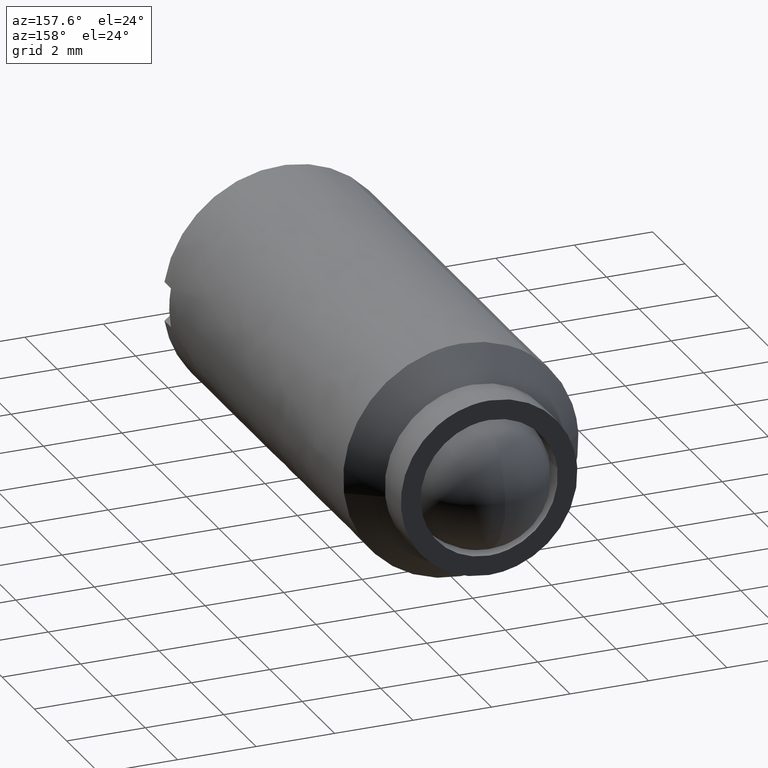
[diagram: clean part render]
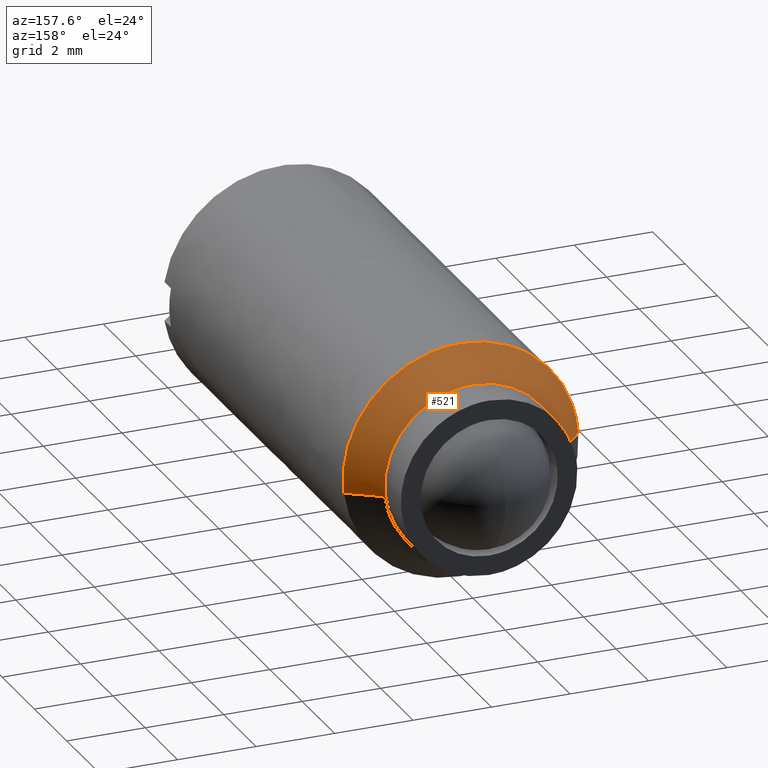
[diagram: same view with one face highlighted and labeled with its STEP entity id]
A machine part, auxiliary view. The second image highlights one B-rep face of the part: STEP entity #521.
In plain terms, the highlighted face is a freeform B-spline surface patch.
Its self-contained STEP definition (entity closure, byte-faithful):
#252=CARTESIAN_POINT('',(0.791140442382787,-2.0,2.106323052246821));
#253=VERTEX_POINT('',#252);
#254=CARTESIAN_POINT('',(0.0,-2.0,2.249999999999999));
#255=VERTEX_POINT('',#254);
#256=CARTESIAN_POINT('',(0.791140442382787,-2.000000000000000,2.106323052246821));
#257=CARTESIAN_POINT('',(0.408616618652142,-2.000000000000000,2.249999999999999));
#258=CARTESIAN_POINT('',(0.0,-2.0,2.249999999999999));
#266=(BOUNDED_CURVE()B_SPLINE_CURVE(2,(#256,#257,#258),.UNSPECIFIED.,.F.,.U.)B_SPLINE_CURVE_WITH_KNOTS((3,3),(0.440284170898647,0.500000000000000),.UNSPECIFIED.)CURVE()GEOMETRIC_REPRESENTATION_ITEM()RATIONAL_B_SPLINE_CURVE((0.893499554635445,0.930038554401563,1.0))REPRESENTATION_ITEM(''));
#267=EDGE_CURVE('',#253,#255,#266,.T.);
#306=CARTESIAN_POINT('',(-2.245803296450222,-2.000000000004009,0.137359213967844));
#307=VERTEX_POINT('',#306);
#313=CARTESIAN_POINT('',(0.0,-2.0,2.249999999999999));
#314=CARTESIAN_POINT('',(-2.116588650483795,-2.000000000000000,2.250000000000000));
#315=CARTESIAN_POINT('',(-2.245803296450223,-2.000000000004009,0.137359213967844));
#323=(BOUNDED_CURVE()B_SPLINE_CURVE(2,(#313,#314,#315),.UNSPECIFIED.,.F.,.U.)B_SPLINE_CURVE_WITH_KNOTS((3,3),(0.500000000000000,0.739332962237573),.UNSPECIFIED.)CURVE()GEOMETRIC_REPRESENTATION_ITEM()RATIONAL_B_SPLINE_CURVE((1.0,0.719603993288315,0.976072041663781))REPRESENTATION_ITEM(''));
#324=EDGE_CURVE('',#255,#307,#323,.T.);
#351=CARTESIAN_POINT('',(2.234271434318409,-2.000000000002305,-0.265577027995891));
#352=VERTEX_POINT('',#351);
#353=CARTESIAN_POINT('',(2.234271434318409,-2.000000000002306,-0.265577027995891));
#354=CARTESIAN_POINT('',(2.250000000000000,-2.000000000000000,-0.133254269234900));
#355=CARTESIAN_POINT('',(2.250000000000000,-2.0,-9.796851E-016));
#356=CARTESIAN_POINT('',(2.250000000000000,-2.000000000000000,1.558371590309681));
#357=CARTESIAN_POINT('',(0.791140442382787,-2.0,2.106323052246820));
#365=(BOUNDED_CURVE()B_SPLINE_CURVE(2,(#353,#354,#355,#356,#357),.UNSPECIFIED.,.F.,.U.)B_SPLINE_CURVE_WITH_KNOTS((3,2,3),(0.229562473512934,0.250000000000000,0.440284170898647),.UNSPECIFIED.)CURVE()GEOMETRIC_REPRESENTATION_ITEM()RATIONAL_B_SPLINE_CURVE((0.956026754182574,0.976055948330473,1.0,0.777068226784984,0.893499554635445))REPRESENTATION_ITEM(''));
#366=EDGE_CURVE('',#352,#253,#365,.T.);
#435=CARTESIAN_POINT('',(2.215652505698930,-1.981250000000000,-0.263363886077893));
#436=CARTESIAN_POINT('',(2.223189866969700,-1.981250000000000,-0.199952863273489));
#437=CARTESIAN_POINT('',(2.227088268978790,-1.981250000000000,-0.136214553837151));
#438=CARTESIAN_POINT('',(2.363302822815940,-1.981250000000000,2.090873715141639));
#439=CARTESIAN_POINT('',(0.136214553837150,-1.981250000000000,2.227088268978789));
#440=CARTESIAN_POINT('',(-2.090873715141639,-1.981250000000000,2.363302822815939));
#441=CARTESIAN_POINT('',(-2.227088268978790,-1.981250000000000,0.136214553837149));
#442=CARTESIAN_POINT('',(2.998112980925802,-2.769218750000000,-0.356371174417586));
#443=CARTESIAN_POINT('',(3.008312170830221,-2.769218750000001,-0.270566468979945));
#444=CARTESIAN_POINT('',(3.013587298422772,-2.769218750000000,-0.184318895223758));
#445=CARTESIAN_POINT('',(3.197906193646529,-2.769218750000000,2.829268403199014));
#446=CARTESIAN_POINT('',(0.184318895223757,-2.769218750000000,3.013587298422771));
#447=CARTESIAN_POINT('',(-2.829268403199015,-2.769218750000000,3.197906193646527));
#448=CARTESIAN_POINT('',(-3.013587298422772,-2.769218750000000,0.184318895223756));
#456=(BOUNDED_SURFACE()B_SPLINE_SURFACE(2,1,((#435,#442),(#436,#443),(#437,#444),(#438,#445),(#439,#446),(#440,#447),(#441,#448)),.UNSPECIFIED.,.F.,.F.,.U.)B_SPLINE_SURFACE_WITH_KNOTS((3,2,2,3),(2,2),(0.0,0.200096216643383,5.202501632727957,10.204907048812530),(0.0,1.0),.UNSPECIFIED.)GEOMETRIC_REPRESENTATION_ITEM()RATIONAL_B_SPLINE_SURFACE(((0.977505800795127,0.977505800795127),(0.988284271247462,0.988284271247462),(1.0,1.0),(0.707106781186548,0.707106781186548),(1.0,1.0),(0.707106781186548,0.707106781186548),(1.0,1.0)))REPRESENTATION_ITEM('')SURFACE());
#457=ORIENTED_EDGE('',*,*,#366,.T.);
#458=ORIENTED_EDGE('',*,*,#267,.T.);
#459=ORIENTED_EDGE('',*,*,#324,.T.);
#460=CARTESIAN_POINT('',(-2.994404395267101,-2.750000000002790,0.183145618625737));
#461=VERTEX_POINT('',#460);
#462=CARTESIAN_POINT('',(-2.245803296450222,-2.000000000004009,0.137359213967844));
#463=CARTESIAN_POINT('',(-2.994404395267101,-2.750000000002790,0.183145618625737));
#464=QUASI_UNIFORM_CURVE('',1,(#462,#463),.UNSPECIFIED.,.F.,.U.);
#465=EDGE_CURVE('',#307,#461,#464,.T.);
#466=ORIENTED_EDGE('',*,*,#465,.T.);
#467=CARTESIAN_POINT('',(-1.784467472697592,-2.750000000000000,2.411571238608357));
#468=VERTEX_POINT('',#467);
#469=CARTESIAN_POINT('',(-1.784467472697592,-2.750000000000000,2.411571238608356));
#470=CARTESIAN_POINT('',(-2.909002149701276,-2.750000000000000,1.579459990594403));
#471=CARTESIAN_POINT('',(-2.994404395267101,-2.750000000002789,0.183145618625737));
#479=(BOUNDED_CURVE()B_SPLINE_CURVE(2,(#469,#470,#471),.UNSPECIFIED.,.F.,.U.)B_SPLINE_CURVE_WITH_KNOTS((3,3),(0.602574061870398,0.739332962239549),.UNSPECIFIED.)CURVE()GEOMETRIC_REPRESENTATION_ITEM()RATIONAL_B_SPLINE_CURVE((0.858267075351934,0.829521863421190,0.976072041668018))REPRESENTATION_ITEM(''));
#480=EDGE_CURVE('',#468,#461,#479,.T.);
#481=ORIENTED_EDGE('',*,*,#480,.F.);
#482=CARTESIAN_POINT('',(0.0,-2.750000000000000,2.999999999999999));
#483=VERTEX_POINT('',#482);
#484=CARTESIAN_POINT('',(0.0,-2.750000000000000,2.999999999999999));
#485=CARTESIAN_POINT('',(-0.989251029331300,-2.750000000000000,2.999999999999999));
#486=CARTESIAN_POINT('',(-1.784467472697592,-2.750000000000000,2.411571238608356));
#494=(BOUNDED_CURVE()B_SPLINE_CURVE(2,(#484,#485,#486),.UNSPECIFIED.,.F.,.U.)B_SPLINE_CURVE_WITH_KNOTS((3,3),(0.500000000000000,0.602574061870398),.UNSPECIFIED.)CURVE()GEOMETRIC_REPRESENTATION_ITEM()RATIONAL_B_SPLINE_CURVE((1.0,0.879827011408036,0.858267075351934))REPRESENTATION_ITEM(''));
#495=EDGE_CURVE('',#483,#468,#494,.T.);
#496=ORIENTED_EDGE('',*,*,#495,.F.);
#497=CARTESIAN_POINT('',(2.979028579091096,-2.750000000001402,-0.354102703981332));
#498=VERTEX_POINT('',#497);
#499=CARTESIAN_POINT('',(2.979028579091097,-2.750000000001402,-0.354102703981332));
#500=CARTESIAN_POINT('',(3.000000000000001,-2.750000000000000,-0.177672358966736));
#501=CARTESIAN_POINT('',(3.0,-2.750000000000000,-9.796851E-016));
#502=CARTESIAN_POINT('',(3.0,-2.750000000000000,2.999999999999999));
#503=CARTESIAN_POINT('',(0.0,-2.750000000000000,2.999999999999999));
#511=(BOUNDED_CURVE()B_SPLINE_CURVE(2,(#499,#500,#501,#502,#503),.UNSPECIFIED.,.F.,.U.)B_SPLINE_CURVE_WITH_KNOTS((3,2,3),(0.229562473514409,0.250000000000000,0.500000000000000),.UNSPECIFIED.)CURVE()GEOMETRIC_REPRESENTATION_ITEM()RATIONAL_B_SPLINE_CURVE((0.956026754185464,0.976055948332200,1.0,0.707106781186548,1.0))REPRESENTATION_ITEM(''));
#512=EDGE_CURVE('',#498,#483,#511,.T.);
#513=ORIENTED_EDGE('',*,*,#512,.F.);
#514=CARTESIAN_POINT('',(2.234271434318409,-2.000000000002305,-0.265577027995891));
#515=CARTESIAN_POINT('',(2.979028579091096,-2.750000000001402,-0.354102703981332));
#516=QUASI_UNIFORM_CURVE('',1,(#514,#515),.UNSPECIFIED.,.F.,.U.);
#517=EDGE_CURVE('',#352,#498,#516,.T.);
#518=ORIENTED_EDGE('',*,*,#517,.F.);
#519=EDGE_LOOP('',(#457,#458,#459,#466,#481,#496,#513,#518));
#520=FACE_OUTER_BOUND('',#519,.T.);
#521=ADVANCED_FACE('',(#520),#456,.T.);